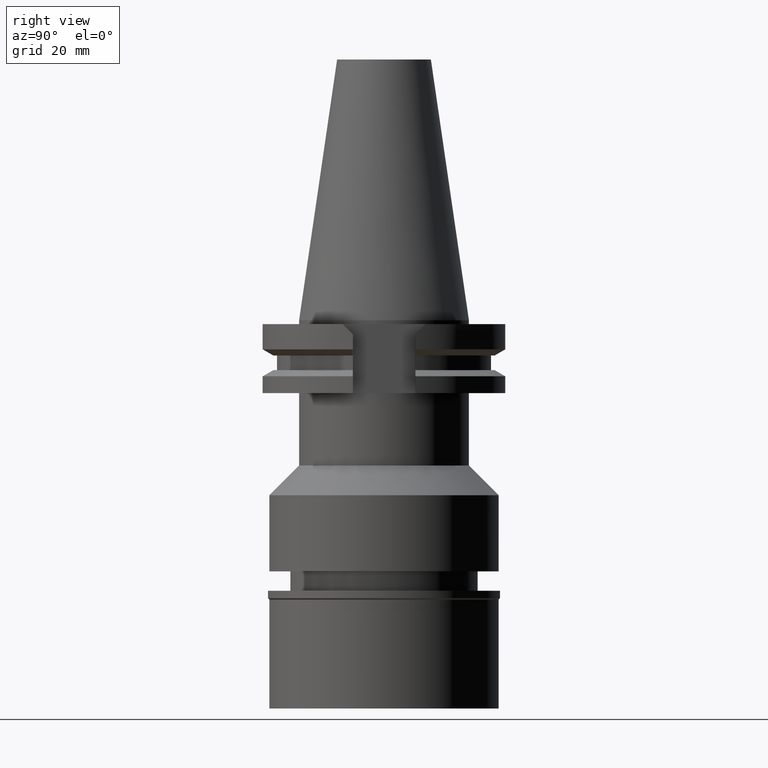
[diagram: clean part render]
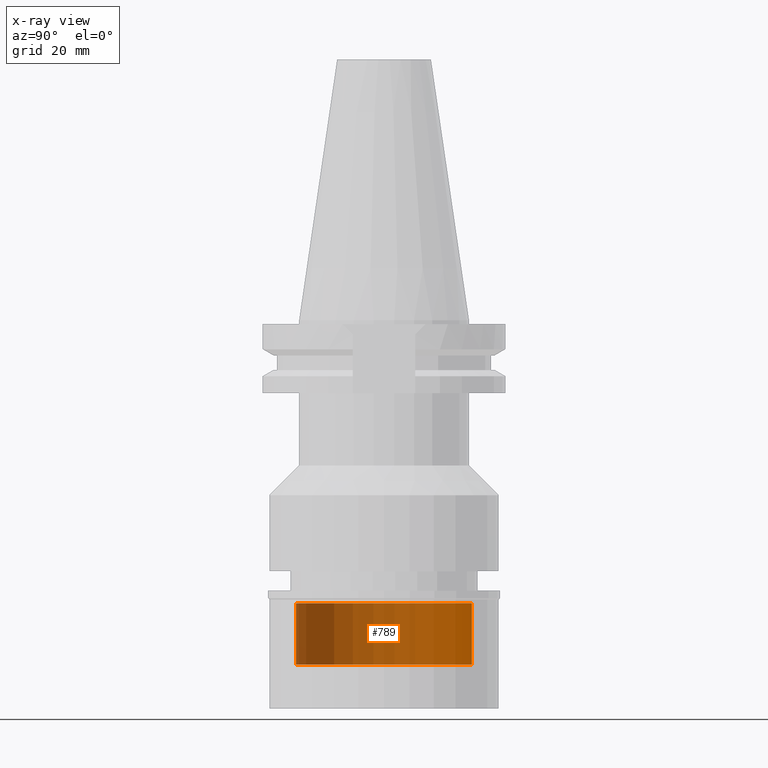
[diagram: x-ray — body ghosted, one internal face saturated and labeled with its STEP entity id]
A machine part, right view, then the same camera in x-ray: the body is ghosted and one INTERNAL B-rep face — a face not visible from any outside direction — is saturated and labeled: STEP entity #789.
In plain terms, the highlighted cylindrical surface (partial cylindrical patch) has radius 23 mm, axis along (0, 0, -1).
Its self-contained STEP definition (entity closure, byte-faithful):
#18 = ORIENTED_EDGE ( 'NONE', *, *, #2798, .T. ) ;
#114 = DIRECTION ( 'NONE',  ( 0.0000000000000000000, 0.0000000000000000000, -1.000000000000000000 ) ) ;
#308 = CYLINDRICAL_SURFACE ( 'NONE', #1787, 23.00000000000000000 ) ;
#470 = ORIENTED_EDGE ( 'NONE', *, *, #1952, .T. ) ;
#485 = VECTOR ( 'NONE', #114, 1000.000000000000000 ) ;
#494 = VERTEX_POINT ( 'NONE', #2099 ) ;
#620 = CARTESIAN_POINT ( 'NONE',  ( 0.0000000000000000000, -23.00000000000000000, -74.09999999999999432 ) ) ;
#638 = CIRCLE ( 'NONE', #1344, 23.00000000000000000 ) ;
#789 = ADVANCED_FACE ( 'NONE', ( #2046 ), #308, .T. ) ;
#851 = DIRECTION ( 'NONE',  ( 0.0000000000000000000, 1.000000000000000000, 0.0000000000000000000 ) ) ;
#886 = CARTESIAN_POINT ( 'NONE',  ( 0.0000000000000000000, -23.00000000000000000, -90.09999999999999432 ) ) ;
#1031 = VECTOR ( 'NONE', #1515, 1000.000000000000000 ) ;
#1123 = CARTESIAN_POINT ( 'NONE',  ( 0.0000000000000000000, 2.157429649887999992E-14, -90.09999999999999432 ) ) ;
#1140 = DIRECTION ( 'NONE',  ( 0.0000000000000000000, 0.0000000000000000000, 1.000000000000000000 ) ) ;
#1188 = CARTESIAN_POINT ( 'NONE',  ( 0.0000000000000000000, 23.00000000000000000, -74.09999999999999432 ) ) ;
#1224 = EDGE_LOOP ( 'NONE', ( #470, #1517, #18, #2573 ) ) ;
#1250 = CARTESIAN_POINT ( 'NONE',  ( 0.0000000000000000000, 2.157429649887999992E-14, -74.09999999999999432 ) ) ;
#1286 = DIRECTION ( 'NONE',  ( 0.0000000000000000000, 0.0000000000000000000, -1.000000000000000000 ) ) ;
#1287 = DIRECTION ( 'NONE',  ( 0.0000000000000000000, 0.0000000000000000000, -1.000000000000000000 ) ) ;
#1344 = AXIS2_PLACEMENT_3D ( 'NONE', #1250, #1286, #2263 ) ;
#1383 = LINE ( 'NONE', #620, #485 ) ;
#1414 = EDGE_CURVE ( 'NONE', #494, #1487, #1383, .T. ) ;
#1487 = VERTEX_POINT ( 'NONE', #886 ) ;
#1515 = DIRECTION ( 'NONE',  ( 0.0000000000000000000, 0.0000000000000000000, -1.000000000000000000 ) ) ;
#1517 = ORIENTED_EDGE ( 'NONE', *, *, #1414, .F. ) ;
#1562 = CARTESIAN_POINT ( 'NONE',  ( 0.0000000000000000000, 23.00000000000000000, -74.09999999999999432 ) ) ;
#1613 = VERTEX_POINT ( 'NONE', #1188 ) ;
#1646 = AXIS2_PLACEMENT_3D ( 'NONE', #1123, #1140, #851 ) ;
#1681 = EDGE_CURVE ( 'NONE', #1613, #2647, #2747, .T. ) ;
#1787 = AXIS2_PLACEMENT_3D ( 'NONE', #2562, #1287, #2026 ) ;
#1952 = EDGE_CURVE ( 'NONE', #2647, #1487, #2516, .T. ) ;
#2026 = DIRECTION ( 'NONE',  ( 0.0000000000000000000, -1.000000000000000000, 0.0000000000000000000 ) ) ;
#2046 = FACE_OUTER_BOUND ( 'NONE', #1224, .T. ) ;
#2099 = CARTESIAN_POINT ( 'NONE',  ( 0.0000000000000000000, -23.00000000000000000, -74.09999999999999432 ) ) ;
#2263 = DIRECTION ( 'NONE',  ( 0.0000000000000000000, -1.000000000000000000, 0.0000000000000000000 ) ) ;
#2516 = CIRCLE ( 'NONE', #1646, 23.00000000000000000 ) ;
#2562 = CARTESIAN_POINT ( 'NONE',  ( 0.0000000000000000000, 2.157429649887999992E-14, 76.16750000000000398 ) ) ;
#2573 = ORIENTED_EDGE ( 'NONE', *, *, #1681, .T. ) ;
#2647 = VERTEX_POINT ( 'NONE', #2876 ) ;
#2747 = LINE ( 'NONE', #1562, #1031 ) ;
#2798 = EDGE_CURVE ( 'NONE', #494, #1613, #638, .T. ) ;
#2876 = CARTESIAN_POINT ( 'NONE',  ( 0.0000000000000000000, 23.00000000000000000, -90.09999999999999432 ) ) ;